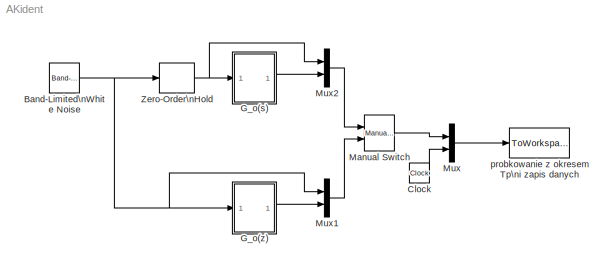
MODEL AKident
KIND model
BLOCK [Reference] Band-Limited\nWhite Noise  REF=simulink/Sources/Band-Limited\nWhite Noise
  Cov = [0.5]*Tp
  Ports = [0, 1]
  ShowPortLabels = on
  SourceBlock = simulink/Sources/Band-Limited\nWhite Noise
  SourceType = Band-Limited White Noise.
  Ts = Tp
  VectorParams1D = on
  seed = [23341]
BLOCK [Clock] Clock
  Decimation = 10
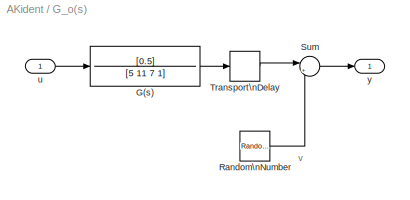
BLOCK [SubSystem] G_o(s)
  MaskHideContents = off
  MinAlgLoopOccurrences = off
  Ports = [1, 1]
  RTWSystemCode = Auto
  TreatAsAtomicUnit = off
BLOCK [TransferFcn] G_o(s)/G(s)
  Denominator = [5 11 7 1]
  Numerator = [0.5]
BLOCK [RandomNumber] G_o(s)/Random\nNumber
  SampleTime = Tp*0.1
  Seed = 159
  Variance = sigma2v
BLOCK [Sum] G_o(s)/Sum
  IconShape = round
  InputSameDT = off
  Inputs = |++
  OutDataTypeMode = Inherit via internal rule
  Ports = [2, 1]
  SaturateOnIntegerOverflow = off
BLOCK [TransportDelay] G_o(s)/Transport\nDelay
  DelayTime = 3
BLOCK [Inport] G_o(s)/u
  IconDisplay = Port number
BLOCK [Outport] G_o(s)/y
  BusOutputAsStruct = off
  IconDisplay = Port number
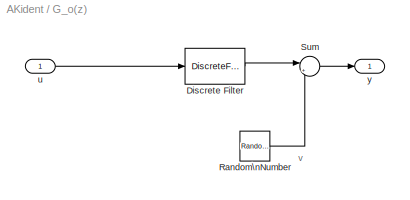
BLOCK [SubSystem] G_o(z)
  MaskHideContents = off
  MinAlgLoopOccurrences = off
  Ports = [1, 1]
  RTWSystemCode = Auto
  TreatAsAtomicUnit = off
BLOCK [DiscreteFilter] G_o(z)/Discrete Filter
  Denominator = [1 -0.7]
  Numerator = [2]
  SampleTime = Tp
BLOCK [RandomNumber] G_o(z)/Random\nNumber
  SampleTime = Tp
  Seed = 159
  Variance = sigma2v
BLOCK [Sum] G_o(z)/Sum
  IconShape = round
  InputSameDT = off
  Inputs = |++
  OutDataTypeMode = Inherit via internal rule
  Ports = [2, 1]
  SaturateOnIntegerOverflow = off
BLOCK [Inport] G_o(z)/u
  IconDisplay = Port number
BLOCK [Outport] G_o(z)/y
  BusOutputAsStruct = off
  IconDisplay = Port number
BLOCK [Reference] Manual Switch  REF=simulink/Signal\nRouting/Manual Switch
  Ports = [2, 1]
  ShowPortLabels = on
  SourceBlock = simulink/Signal\nRouting/Manual Switch
  SourceType = Manual Switch
  action = 0
  sw = 1
BLOCK [Mux] Mux
  DisplayOption = bar
  Inputs = 2
  Ports = [2, 1]
BLOCK [Mux] Mux1
  DisplayOption = bar
  Inputs = 2
  Ports = [2, 1]
BLOCK [Mux] Mux2
  DisplayOption = bar
  Inputs = 2
  Ports = [2, 1]
BLOCK [ZeroOrderHold] Zero-Order\nHold
  SampleTime = Tp
BLOCK [ToWorkspace] probkowanie z okresem Tp\ni zapis danych
  MaxDataPoints = inf
  SampleTime = Tp
  SaveFormat = Array
  VariableName = Zdata
ANNOTATION G_o(s): v
ANNOTATION G_o(z): v
NET Band-Limited\nWhite Noise:1 -> G_o(z):1, Mux1:1, Zero-Order\nHold:1
LINE Clock:1 -> Mux:2
LINE G_o(s)/G(s):1 -> G_o(s)/Transport\nDelay:1
LINE G_o(s)/Random\nNumber:1 -> G_o(s)/Sum:2
LINE G_o(s)/Sum:1 -> G_o(s)/y:1
LINE G_o(s)/Transport\nDelay:1 -> G_o(s)/Sum:1
LINE G_o(s)/u:1 -> G_o(s)/G(s):1
LINE G_o(s):1 -> Mux2:2
LINE G_o(z)/Discrete Filter:1 -> G_o(z)/Sum:1
LINE G_o(z)/Random\nNumber:1 -> G_o(z)/Sum:2
LINE G_o(z)/Sum:1 -> G_o(z)/y:1
LINE G_o(z)/u:1 -> G_o(z)/Discrete Filter:1
LINE G_o(z):1 -> Mux1:2
LINE Manual Switch:1 -> Mux:1
LINE Mux1:1 -> Manual Switch:2
LINE Mux2:1 -> Manual Switch:1
LINE Mux:1 -> probkowanie z okresem Tp\ni zapis danych:1
NET Zero-Order\nHold:1 -> G_o(s):1, Mux2:1
note: NET lines group one-source signal fan-out (src -> all destinations, sorted); 1:1 wires keep LINE
